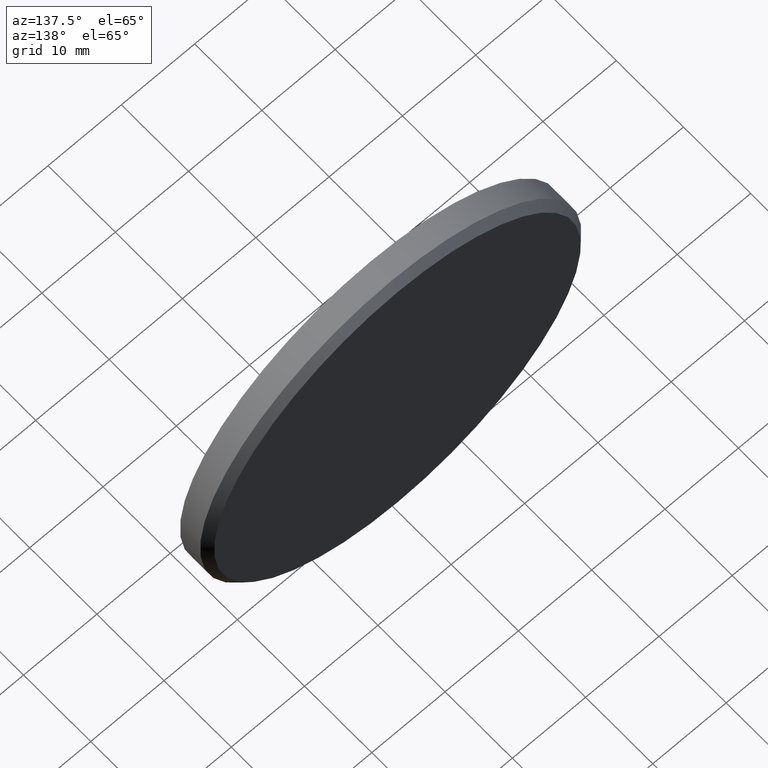
[diagram: clean part render]
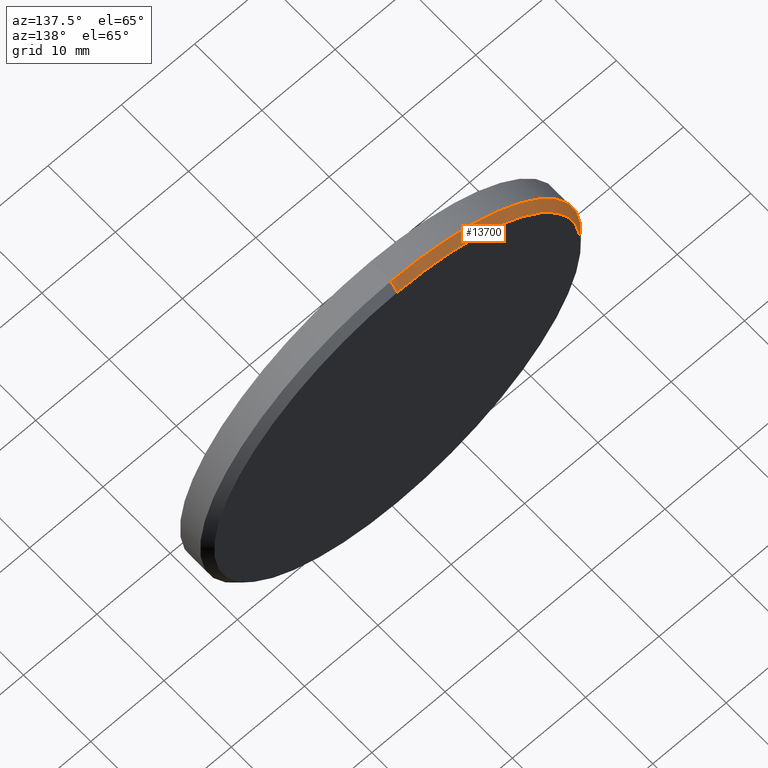
[diagram: same view with one face highlighted and labeled with its STEP entity id]
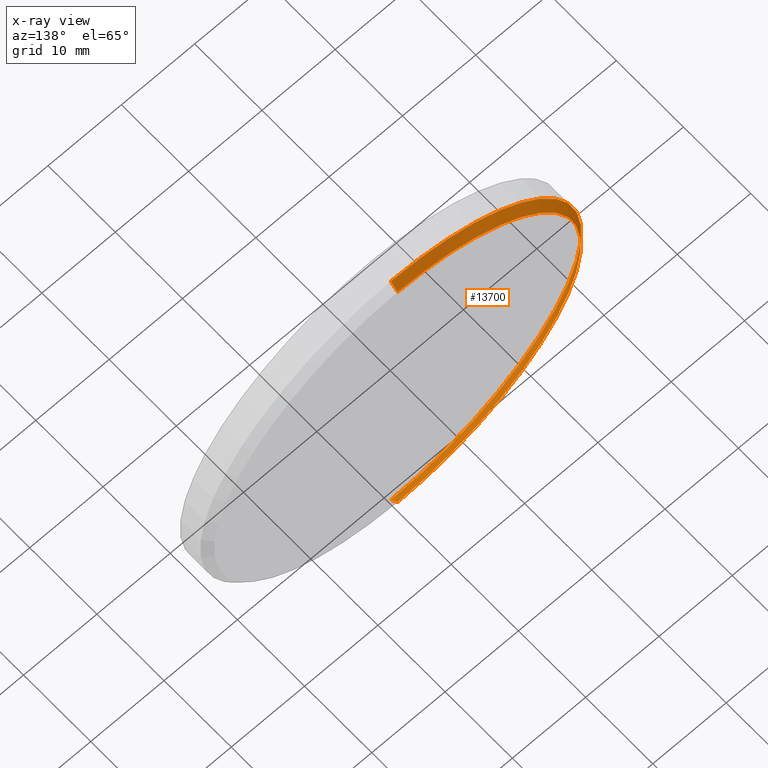
[diagram: x-ray of the same camera — body ghosted, the highlighted face saturated]
A machine part, auxiliary view. The second image highlights one B-rep face of the part: STEP entity #13700.
The next image is the same camera in x-ray: the body ghosted, the highlighted face saturated — about 0% of this face is hidden behind the body in this view.
In plain terms, the highlighted conical surface has half-angle 45 deg.
Its self-contained STEP definition (entity closure, byte-faithful):
#15 = ORIENTED_EDGE ( 'NONE', *, *, #14122, .F. ) ;
#124 = ORIENTED_EDGE ( 'NONE', *, *, #8776, .F. ) ;
#278 = CARTESIAN_POINT ( 'NONE',  ( 0.000000000000000000, 2.000000000000000000, -25.00000000000001421 ) ) ;
#288 = AXIS2_PLACEMENT_3D ( 'NONE', #5218, #13275, #5267 ) ;
#503 = CIRCLE ( 'NONE', #288, 26.00000000000000355 ) ;
#870 = DIRECTION ( 'NONE',  ( 8.659560562354932858E-17, -0.7071067811865474617, 0.7071067811865474617 ) ) ;
#1434 = VERTEX_POINT ( 'NONE', #2389 ) ;
#2389 = CARTESIAN_POINT ( 'NONE',  ( 0.000000000000000000, 1.000000000000013101, -26.00000000000000355 ) ) ;
#3221 = LINE ( 'NONE', #7125, #12065 ) ;
#4668 = EDGE_CURVE ( 'NONE', #8235, #4814, #7441, .T. ) ;
#4814 = VERTEX_POINT ( 'NONE', #10051 ) ;
#5106 = AXIS2_PLACEMENT_3D ( 'NONE', #6385, #9763, #5190 ) ;
#5190 = DIRECTION ( 'NONE',  ( 0.000000000000000000, 0.000000000000000000, -1.000000000000000000 ) ) ;
#5218 = CARTESIAN_POINT ( 'NONE',  ( 0.000000000000000000, 1.000000000000013101, 0.000000000000000000 ) ) ;
#5267 = DIRECTION ( 'NONE',  ( 0.000000000000000000, 0.000000000000000000, 1.000000000000000000 ) ) ;
#5705 = VERTEX_POINT ( 'NONE', #6546 ) ;
#5827 = DIRECTION ( 'NONE',  ( 0.000000000000000000, -0.7071067811865474617, -0.7071067811865474617 ) ) ;
#6385 = CARTESIAN_POINT ( 'NONE',  ( 0.000000000000000000, 2.000000000000000000, 0.000000000000000000 ) ) ;
#6546 = CARTESIAN_POINT ( 'NONE',  ( 3.184081677783118585E-15, 1.000000000000013101, 26.00000000000000355 ) ) ;
#7125 = CARTESIAN_POINT ( 'NONE',  ( 0.000000000000000000, 2.000000000000000000, -25.00000000000001421 ) ) ;
#7152 = DIRECTION ( 'NONE',  ( 0.000000000000000000, 0.000000000000000000, 1.000000000000000000 ) ) ;
#7441 = CIRCLE ( 'NONE', #10457, 25.00000000000001421 ) ;
#7804 = CARTESIAN_POINT ( 'NONE',  ( 3.061616997868384620E-15, 2.000000000000000000, 25.00000000000001421 ) ) ;
#8075 = FACE_OUTER_BOUND ( 'NONE', #9979, .T. ) ;
#8235 = VERTEX_POINT ( 'NONE', #278 ) ;
#8416 = CARTESIAN_POINT ( 'NONE',  ( 0.000000000000000000, 2.000000000000000000, 0.000000000000000000 ) ) ;
#8776 = EDGE_CURVE ( 'NONE', #4814, #5705, #12297, .T. ) ;
#9635 = ORIENTED_EDGE ( 'NONE', *, *, #4668, .F. ) ;
#9763 = DIRECTION ( 'NONE',  ( 0.000000000000000000, -1.000000000000000000, 0.000000000000000000 ) ) ;
#9979 = EDGE_LOOP ( 'NONE', ( #124, #9635, #14578, #15 ) ) ;
#10051 = CARTESIAN_POINT ( 'NONE',  ( 3.122849337825751406E-15, 2.000000000000000000, 25.00000000000001421 ) ) ;
#10457 = AXIS2_PLACEMENT_3D ( 'NONE', #8416, #14199, #7152 ) ;
#11484 = CONICAL_SURFACE ( 'NONE', #5106, 25.00000000000001421, 0.7853981633974482790 ) ;
#12065 = VECTOR ( 'NONE', #5827, 1000.000000000000114 ) ;
#12297 = LINE ( 'NONE', #7804, #14261 ) ;
#12949 = EDGE_CURVE ( 'NONE', #8235, #1434, #3221, .T. ) ;
#13275 = DIRECTION ( 'NONE',  ( 0.000000000000000000, -1.000000000000000000, 0.000000000000000000 ) ) ;
#13700 = ADVANCED_FACE ( 'NONE', ( #8075 ), #11484, .T. ) ;
#14122 = EDGE_CURVE ( 'NONE', #5705, #1434, #503, .T. ) ;
#14199 = DIRECTION ( 'NONE',  ( 0.000000000000000000, 1.000000000000000000, 0.000000000000000000 ) ) ;
#14261 = VECTOR ( 'NONE', #870, 1000.000000000000114 ) ;
#14578 = ORIENTED_EDGE ( 'NONE', *, *, #12949, .T. ) ;